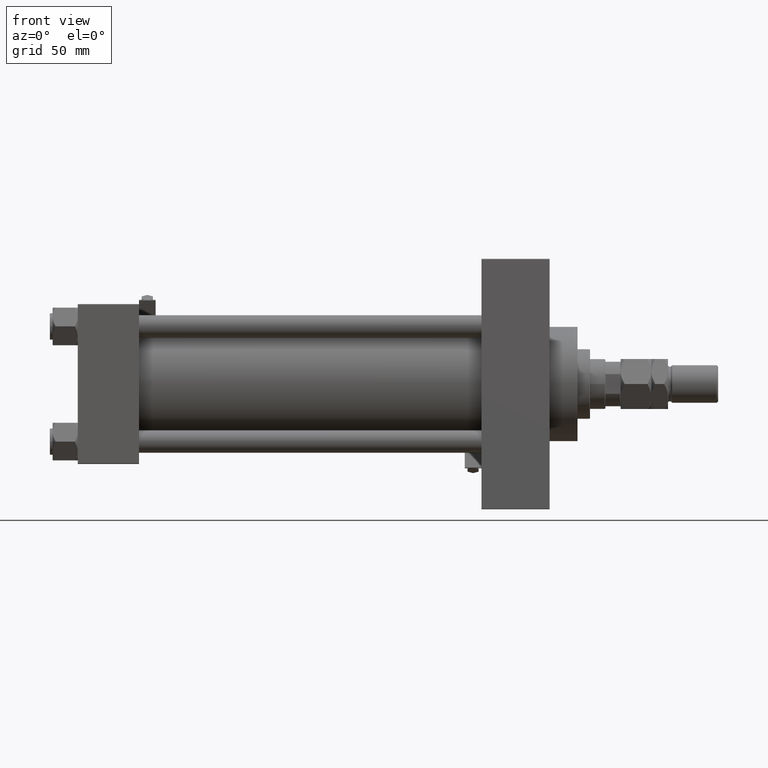
[diagram: clean part render]
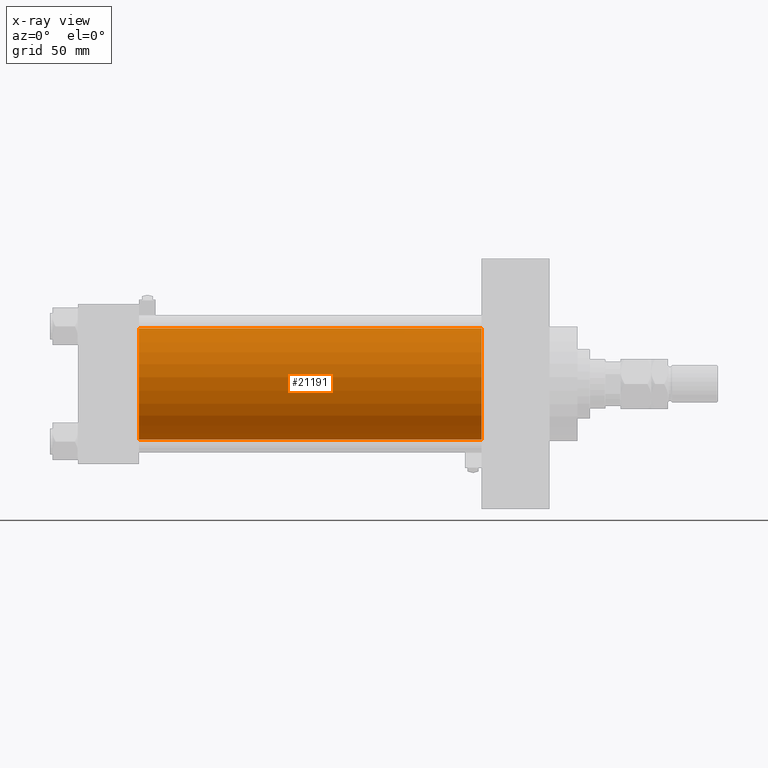
[diagram: x-ray — body ghosted, one internal face saturated and labeled with its STEP entity id]
A machine part, front view, then the same camera in x-ray: the body is ghosted and one INTERNAL B-rep face — a face not visible from any outside direction — is saturated and labeled: STEP entity #21191.
In plain terms, the highlighted cylindrical surface (partial cylindrical patch) has radius 40 mm, axis along (-1, -0, -0).
Its self-contained STEP definition (entity closure, byte-faithful):
#930 = DIRECTION ( 'NONE',  ( 1.000000000000000000, 0.000000000000000000, 0.000000000000000000 ) ) ;
#1363 = AXIS2_PLACEMENT_3D ( 'NONE', #31504, #930, #47029 ) ;
#2907 = DIRECTION ( 'NONE',  ( 1.000000000000000000, 0.000000000000000000, 0.000000000000000000 ) ) ;
#4328 = DIRECTION ( 'NONE',  ( -1.000000000000000000, -0.000000000000000000, -0.000000000000000000 ) ) ;
#5223 = AXIS2_PLACEMENT_3D ( 'NONE', #29913, #2907, #18442 ) ;
#6163 = VERTEX_POINT ( 'NONE', #8604 ) ;
#8604 = CARTESIAN_POINT ( 'NONE',  ( 290.0000000000000000, -2.602085213965210642E-15, 40.00000000000000000 ) ) ;
#9461 = EDGE_CURVE ( 'NONE', #6163, #26544, #23950, .T. ) ;
#10842 = ORIENTED_EDGE ( 'NONE', *, *, #11810, .T. ) ;
#11810 = EDGE_CURVE ( 'NONE', #26544, #38891, #32931, .T. ) ;
#12167 = VECTOR ( 'NONE', #4328, 1000.000000000000000 ) ;
#12531 = VERTEX_POINT ( 'NONE', #13823 ) ;
#13823 = CARTESIAN_POINT ( 'NONE',  ( 44.00000000000000000, -2.602085213965210642E-15, 40.00000000000000000 ) ) ;
#14375 = ORIENTED_EDGE ( 'NONE', *, *, #41614, .F. ) ;
#14691 = EDGE_CURVE ( 'NONE', #12531, #38891, #28196, .T. ) ;
#14993 = DIRECTION ( 'NONE',  ( -1.000000000000000000, -0.000000000000000000, -0.000000000000000000 ) ) ;
#15998 = CYLINDRICAL_SURFACE ( 'NONE', #32418, 40.00000000000000000 ) ;
#18442 = DIRECTION ( 'NONE',  ( 0.000000000000000000, 0.000000000000000000, -1.000000000000000000 ) ) ;
#21191 = ADVANCED_FACE ( 'NONE', ( #35368 ), #15998, .F. ) ;
#23259 = VECTOR ( 'NONE', #25027, 1000.000000000000000 ) ;
#23950 = CIRCLE ( 'NONE', #5223, 40.00000000000000000 ) ;
#25027 = DIRECTION ( 'NONE',  ( -1.000000000000000000, -0.000000000000000000, -0.000000000000000000 ) ) ;
#26544 = VERTEX_POINT ( 'NONE', #27928 ) ;
#27928 = CARTESIAN_POINT ( 'NONE',  ( 290.0000000000000000, 2.296501982624201990E-15, -40.00000000000000000 ) ) ;
#28196 = CIRCLE ( 'NONE', #1363, 40.00000000000000000 ) ;
#29913 = CARTESIAN_POINT ( 'NONE',  ( 290.0000000000000000, -2.602085213965210642E-15, 0.000000000000000000 ) ) ;
#30540 = CARTESIAN_POINT ( 'NONE',  ( 290.0000000000000000, -2.602085213965210642E-15, 0.000000000000000000 ) ) ;
#31504 = CARTESIAN_POINT ( 'NONE',  ( 44.00000000000000000, -2.602085213965210642E-15, 0.000000000000000000 ) ) ;
#32418 = AXIS2_PLACEMENT_3D ( 'NONE', #30540, #14993, #38439 ) ;
#32931 = LINE ( 'NONE', #40315, #23259 ) ;
#34157 = CARTESIAN_POINT ( 'NONE',  ( 290.0000000000000000, -2.602085213965210642E-15, 40.00000000000000000 ) ) ;
#35368 = FACE_OUTER_BOUND ( 'NONE', #39675, .T. ) ;
#38439 = DIRECTION ( 'NONE',  ( 0.000000000000000000, 0.000000000000000000, 1.000000000000000000 ) ) ;
#38891 = VERTEX_POINT ( 'NONE', #48726 ) ;
#39675 = EDGE_LOOP ( 'NONE', ( #41350, #10842, #47663, #14375 ) ) ;
#40315 = CARTESIAN_POINT ( 'NONE',  ( 290.0000000000000000, 2.296501982624201990E-15, -40.00000000000000000 ) ) ;
#41350 = ORIENTED_EDGE ( 'NONE', *, *, #9461, .T. ) ;
#41614 = EDGE_CURVE ( 'NONE', #6163, #12531, #45615, .T. ) ;
#45615 = LINE ( 'NONE', #34157, #12167 ) ;
#47029 = DIRECTION ( 'NONE',  ( 0.000000000000000000, 0.000000000000000000, -1.000000000000000000 ) ) ;
#47663 = ORIENTED_EDGE ( 'NONE', *, *, #14691, .F. ) ;
#48726 = CARTESIAN_POINT ( 'NONE',  ( 44.00000000000000000, 2.296501982624201990E-15, -40.00000000000000000 ) ) ;